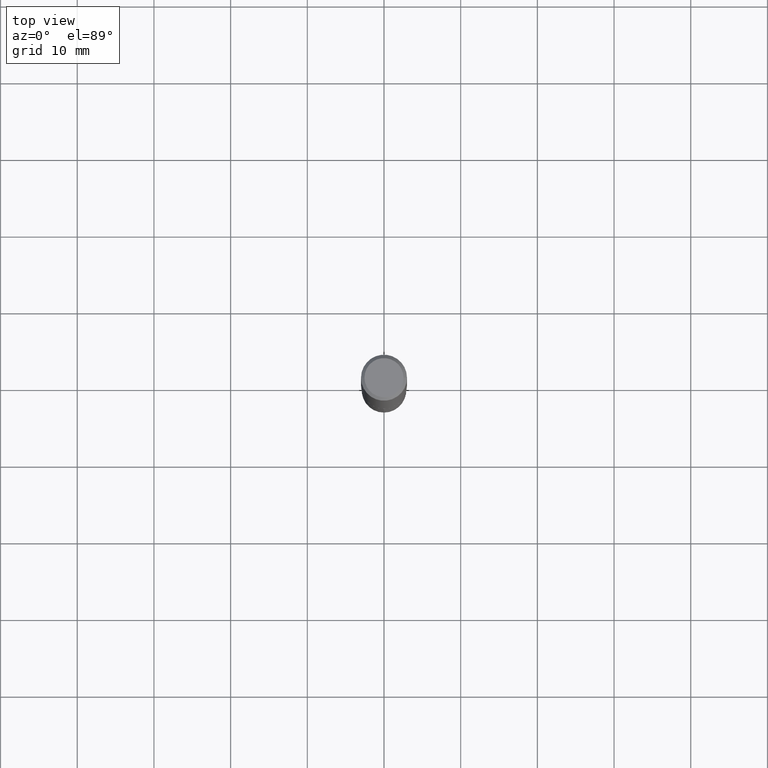
[diagram: clean part render]
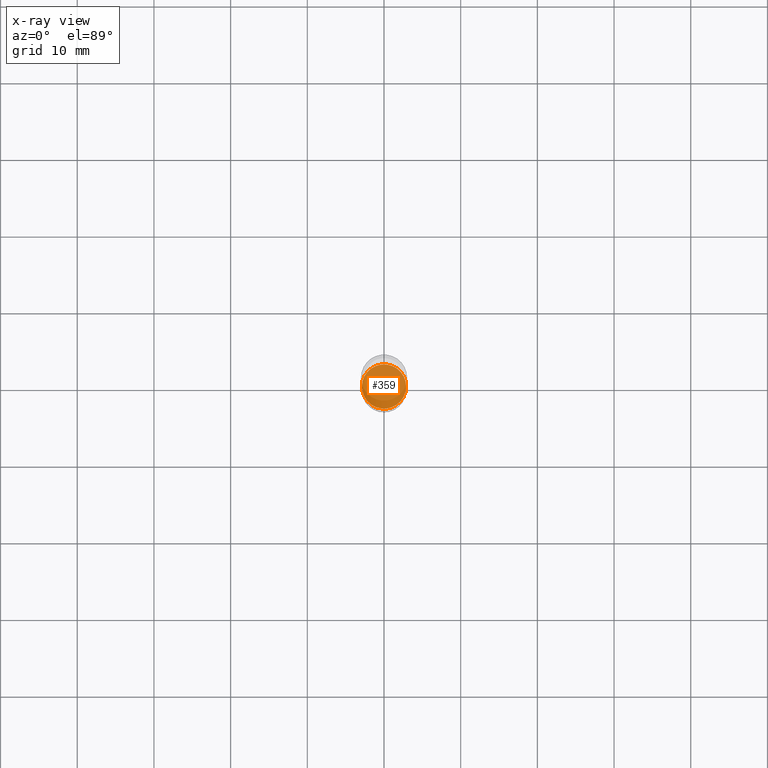
[diagram: x-ray — body ghosted, one internal face saturated and labeled with its STEP entity id]
A machine part, top view, then the same camera in x-ray: the body is ghosted and one INTERNAL B-rep face — a face not visible from any outside direction — is saturated and labeled: STEP entity #359.
In plain terms, the highlighted planar face has unit normal (-0, 0, 1).
Its self-contained STEP definition (entity closure, byte-faithful):
#12 = AXIS2_PLACEMENT_3D ( 'NONE', #386, #210, #207 ) ;
#23 = CARTESIAN_POINT ( 'NONE',  ( -0.1136500000000000010, -8.401045021770521406E-15, -2.638200000000000323 ) ) ;
#61 = CARTESIAN_POINT ( 'NONE',  ( 6.451635804477628369E-29, -9.211226068135987462E-15, -2.638200000000000323 ) ) ;
#91 = FACE_OUTER_BOUND ( 'NONE', #108, .T. ) ;
#108 = EDGE_LOOP ( 'NONE', ( #436, #295 ) ) ;
#134 = CIRCLE ( 'NONE', #205, 0.1136500000000000010 ) ;
#205 = AXIS2_PLACEMENT_3D ( 'NONE', #212, #318, #349 ) ;
#207 = DIRECTION ( 'NONE',  ( 1.000000000000000000, -6.982962677686269077E-15, 0.000000000000000000 ) ) ;
#210 = DIRECTION ( 'NONE',  ( -2.445468806185136597E-29, 3.491481338843145583E-15, 1.000000000000000000 ) ) ;
#212 = CARTESIAN_POINT ( 'NONE',  ( 6.451635804477628369E-29, -9.211226068135987462E-15, -2.638200000000000323 ) ) ;
#228 = EDGE_CURVE ( 'NONE', #294, #361, #134, .T. ) ;
#236 = DIRECTION ( 'NONE',  ( 1.000000000000000000, -6.982962677686265922E-15, 4.876176775795935793E-29 ) ) ;
#243 = CARTESIAN_POINT ( 'NONE',  ( 0.1136500000000000010, -1.000483977645503217E-14, -2.638200000000000323 ) ) ;
#293 = EDGE_CURVE ( 'NONE', #361, #294, #407, .T. ) ;
#294 = VERTEX_POINT ( 'NONE', #23 ) ;
#295 = ORIENTED_EDGE ( 'NONE', *, *, #228, .F. ) ;
#318 = DIRECTION ( 'NONE',  ( -2.445468806185136597E-29, 3.491481338843145583E-15, 1.000000000000000000 ) ) ;
#324 = AXIS2_PLACEMENT_3D ( 'NONE', #61, #388, #236 ) ;
#349 = DIRECTION ( 'NONE',  ( 1.000000000000000000, -6.982962677686269077E-15, 0.000000000000000000 ) ) ;
#359 = ADVANCED_FACE ( 'NONE', ( #91 ), #421, .F. ) ;
#361 = VERTEX_POINT ( 'NONE', #243 ) ;
#386 = CARTESIAN_POINT ( 'NONE',  ( 6.451635804477628369E-29, -9.211226068135987462E-15, -2.638200000000000323 ) ) ;
#388 = DIRECTION ( 'NONE',  ( -2.438088387897960049E-29, 3.491481338843145188E-15, 1.000000000000000000 ) ) ;
#407 = CIRCLE ( 'NONE', #12, 0.1136500000000000010 ) ;
#421 = PLANE ( 'NONE',  #324 ) ;
#436 = ORIENTED_EDGE ( 'NONE', *, *, #293, .F. ) ;